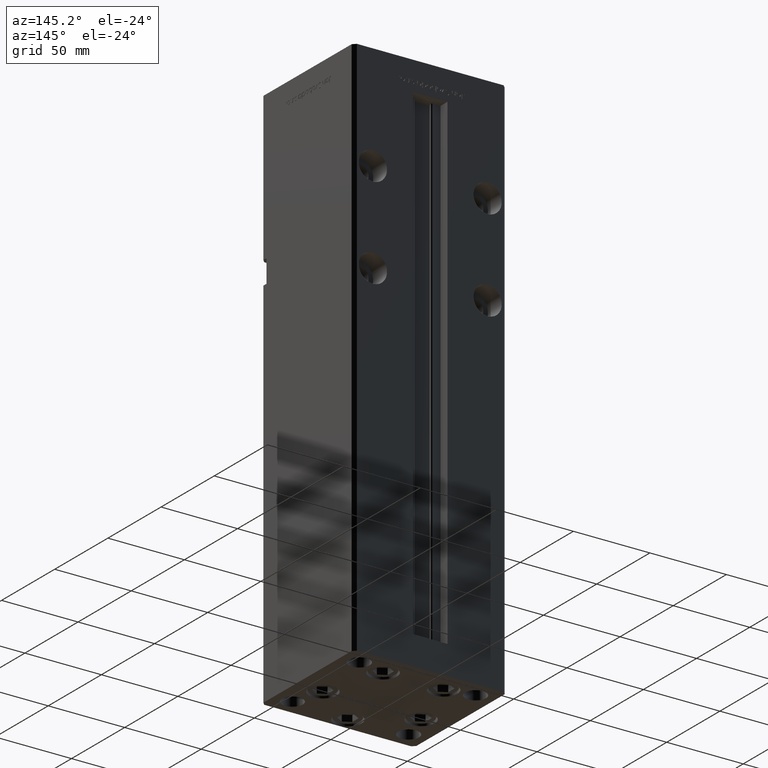
[diagram: clean part render]
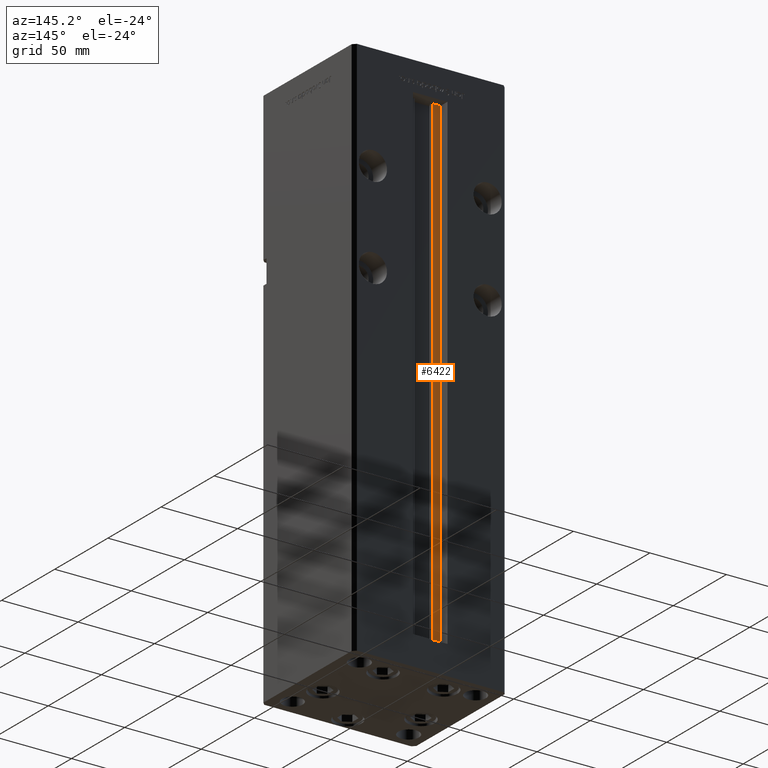
[diagram: same view with one face highlighted and labeled with its STEP entity id]
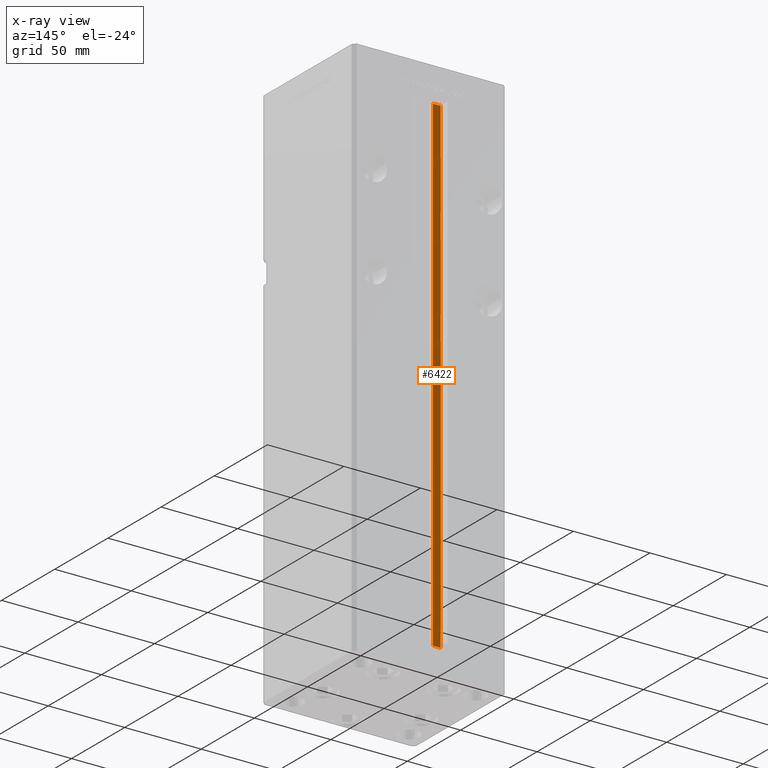
[diagram: x-ray of the same camera — body ghosted, the highlighted face saturated]
A machine part, auxiliary view. The second image highlights one B-rep face of the part: STEP entity #6422.
The next image is the same camera in x-ray: the body ghosted, the highlighted face saturated — about 0% of this face is hidden behind the body in this view.
In plain terms, the highlighted planar face has unit normal (0, -1, 0).
Its self-contained STEP definition (entity closure, byte-faithful):
#556 = ORIENTED_EDGE ( 'NONE', *, *, #39681, .F. ) ;
#1688 = VERTEX_POINT ( 'NONE', #7512 ) ;
#3832 = VECTOR ( 'NONE', #32879, 1000.000000000000000 ) ;
#3851 = CARTESIAN_POINT ( 'NONE',  ( -11.24999999999999645, 37.00000000000000000, 0.000000000000000000 ) ) ;
#6422 = ADVANCED_FACE ( 'NONE', ( #22314 ), #10754, .F. ) ;
#6714 = DIRECTION ( 'NONE',  ( 0.000000000000000000, 0.000000000000000000, -1.000000000000000000 ) ) ;
#7512 = CARTESIAN_POINT ( 'NONE',  ( -6.183333333333996151, 37.00000000000000000, 318.5000000000000000 ) ) ;
#8455 = LINE ( 'NONE', #21087, #3832 ) ;
#10754 = PLANE ( 'NONE',  #38280 ) ;
#12544 = CARTESIAN_POINT ( 'NONE',  ( -6.183333333333996151, 37.00000000000000000, 0.000000000000000000 ) ) ;
#12776 = CARTESIAN_POINT ( 'NONE',  ( -11.24999999999999645, 37.00000000000000000, 0.000000000000000000 ) ) ;
#13146 = LINE ( 'NONE', #41634, #51960 ) ;
#13268 = LINE ( 'NONE', #3851, #48556 ) ;
#13991 = CARTESIAN_POINT ( 'NONE',  ( -6.183333333333996151, 37.00000000000000000, 0.000000000000000000 ) ) ;
#17779 = EDGE_CURVE ( 'NONE', #31995, #19749, #13268, .T. ) ;
#18441 = EDGE_CURVE ( 'NONE', #36183, #1688, #13146, .T. ) ;
#19749 = VERTEX_POINT ( 'NONE', #39348 ) ;
#21087 = CARTESIAN_POINT ( 'NONE',  ( 0.000000000000000000, 37.00000000000000000, 318.5000000000000000 ) ) ;
#22314 = FACE_OUTER_BOUND ( 'NONE', #31221, .T. ) ;
#31221 = EDGE_LOOP ( 'NONE', ( #41543, #556, #44407, #32006 ) ) ;
#31995 = VERTEX_POINT ( 'NONE', #12776 ) ;
#32006 = ORIENTED_EDGE ( 'NONE', *, *, #48656, .F. ) ;
#32879 = DIRECTION ( 'NONE',  ( -1.000000000000000000, 0.000000000000000000, 0.000000000000000000 ) ) ;
#33847 = DIRECTION ( 'NONE',  ( 1.000000000000000000, -0.000000000000000000, -0.000000000000000000 ) ) ;
#34616 = DIRECTION ( 'NONE',  ( -0.000000000000000000, -0.000000000000000000, 1.000000000000000000 ) ) ;
#36183 = VERTEX_POINT ( 'NONE', #12544 ) ;
#37731 = DIRECTION ( 'NONE',  ( -0.000000000000000000, -0.000000000000000000, 1.000000000000000000 ) ) ;
#38280 = AXIS2_PLACEMENT_3D ( 'NONE', #13991, #38711, #6714 ) ;
#38711 = DIRECTION ( 'NONE',  ( 0.000000000000000000, -1.000000000000000000, -0.000000000000000000 ) ) ;
#39348 = CARTESIAN_POINT ( 'NONE',  ( -11.24999999999999645, 37.00000000000000000, 318.5000000000000000 ) ) ;
#39681 = EDGE_CURVE ( 'NONE', #31995, #36183, #45688, .T. ) ;
#41141 = CARTESIAN_POINT ( 'NONE',  ( -6.183333333333996151, 37.00000000000000000, 0.000000000000000000 ) ) ;
#41543 = ORIENTED_EDGE ( 'NONE', *, *, #18441, .F. ) ;
#41634 = CARTESIAN_POINT ( 'NONE',  ( -6.183333333333996151, 37.00000000000000000, 0.000000000000000000 ) ) ;
#44407 = ORIENTED_EDGE ( 'NONE', *, *, #17779, .T. ) ;
#45688 = LINE ( 'NONE', #41141, #52471 ) ;
#48556 = VECTOR ( 'NONE', #37731, 1000.000000000000000 ) ;
#48656 = EDGE_CURVE ( 'NONE', #1688, #19749, #8455, .T. ) ;
#51960 = VECTOR ( 'NONE', #34616, 1000.000000000000000 ) ;
#52471 = VECTOR ( 'NONE', #33847, 1000.000000000000000 ) ;